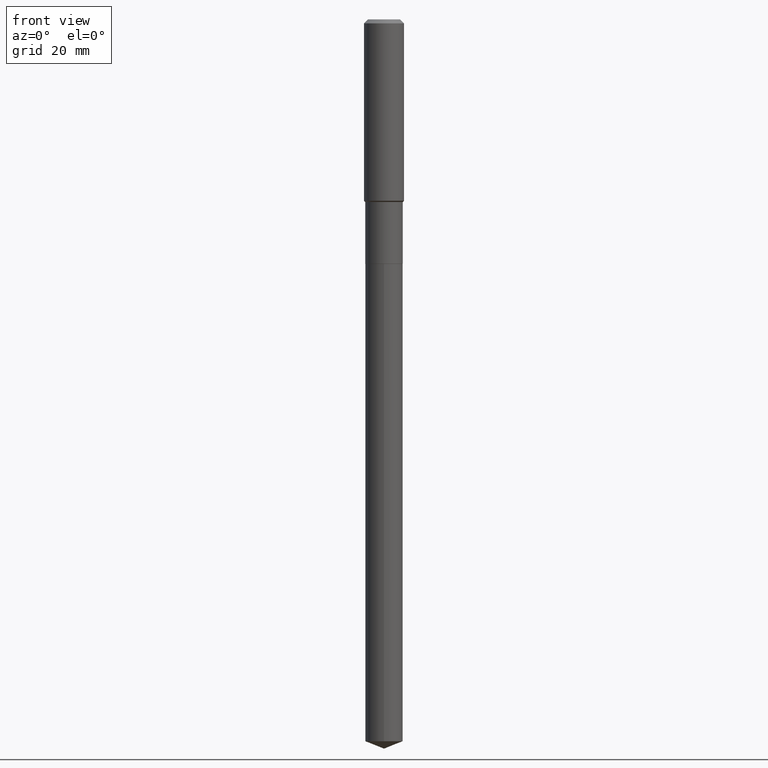
[diagram: clean part render]
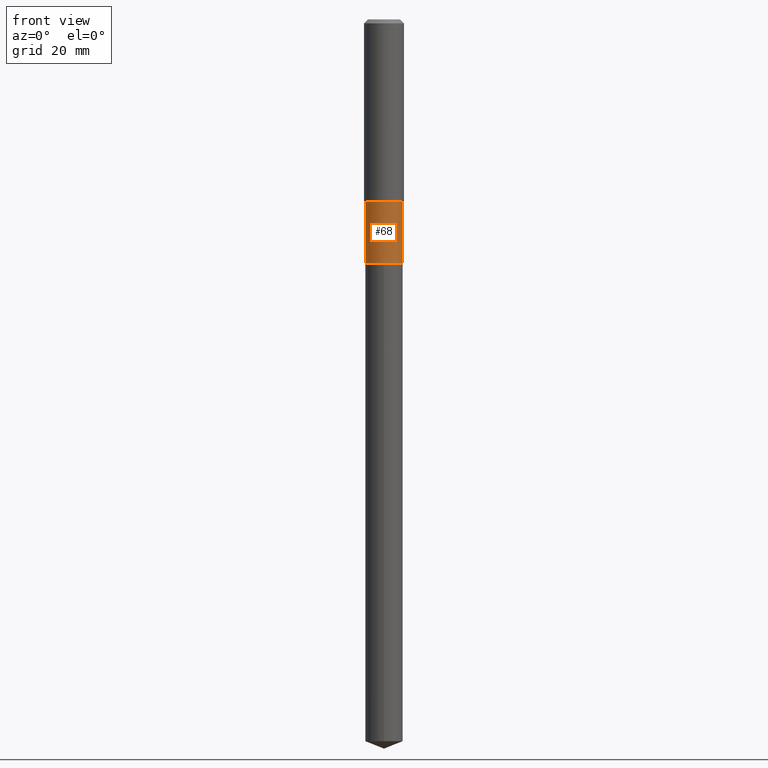
[diagram: same view with one face highlighted and labeled with its STEP entity id]
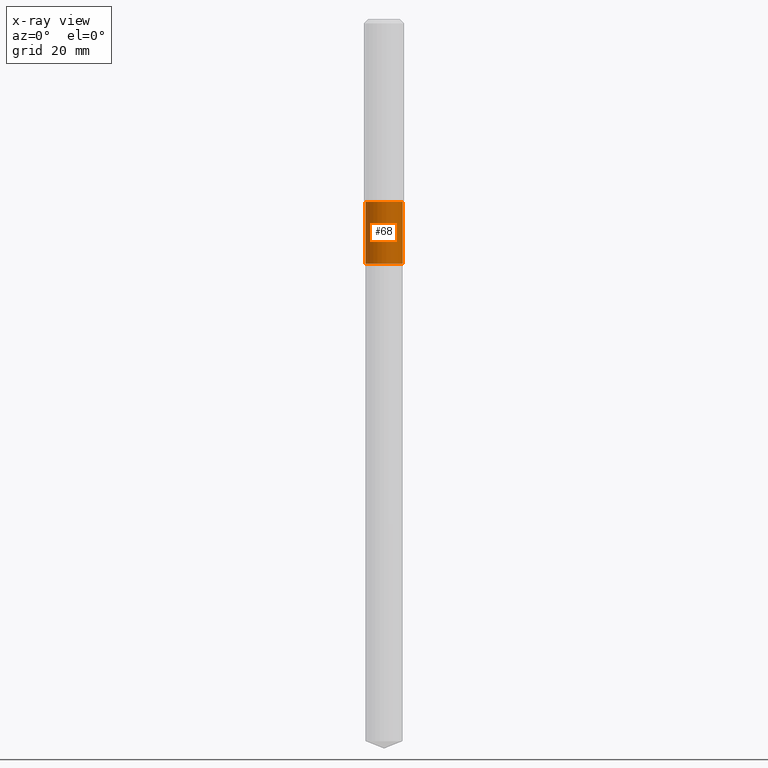
[diagram: x-ray of the same camera — body ghosted, the highlighted face saturated]
A machine part, front view. The second image highlights one B-rep face of the part: STEP entity #68.
The next image is the same camera in x-ray: the body ghosted, the highlighted face saturated — about 0% of this face is hidden behind the body in this view.
In plain terms, the highlighted cylindrical surface (edge-blend (fillet) strip) has radius 4.6736 mm, axis along (-0, 0, 1).
Its self-contained STEP definition (entity closure, byte-faithful):
#10 = EDGE_CURVE ( 'NONE', #379, #243, #325, .T. ) ;
#14 = EDGE_LOOP ( 'NONE', ( #225, #429, #38, #484 ) ) ;
#16 = CARTESIAN_POINT ( 'NONE',  ( -0.1839999999999999969, -6.018252937295160618E-15, -2.401499999999999968 ) ) ;
#22 = AXIS2_PLACEMENT_3D ( 'NONE', #101, #24, #182 ) ;
#24 = DIRECTION ( 'NONE',  ( -2.445468806185136597E-29, 3.491481338843145583E-15, 1.000000000000000000 ) ) ;
#38 = ORIENTED_EDGE ( 'NONE', *, *, #485, .T. ) ;
#48 = LINE ( 'NONE', #319, #107 ) ;
#50 = VERTEX_POINT ( 'NONE', #16 ) ;
#56 = AXIS2_PLACEMENT_3D ( 'NONE', #121, #181, #97 ) ;
#68 = ADVANCED_FACE ( 'NONE', ( #173 ), #252, .T. ) ;
#97 = DIRECTION ( 'NONE',  ( 1.000000000000000000, -6.982962677686265922E-15, 0.000000000000000000 ) ) ;
#101 = CARTESIAN_POINT ( 'NONE',  ( 5.872793338053605564E-29, -8.384792435231812174E-15, -2.401499999999999968 ) ) ;
#107 = VECTOR ( 'NONE', #465, 39.37007874015748143 ) ;
#108 = VECTOR ( 'NONE', #227, 39.37007874015748143 ) ;
#121 = CARTESIAN_POINT ( 'NONE',  ( 4.389127413341083429E-29, -6.266510706955677702E-15, -1.794800000000000173 ) ) ;
#173 = FACE_OUTER_BOUND ( 'NONE', #14, .T. ) ;
#181 = DIRECTION ( 'NONE',  ( -2.445468806185136597E-29, 3.491481338843145583E-15, 1.000000000000000000 ) ) ;
#182 = DIRECTION ( 'NONE',  ( 1.000000000000000000, -6.982962677686264344E-15, 0.000000000000000000 ) ) ;
#225 = ORIENTED_EDGE ( 'NONE', *, *, #312, .F. ) ;
#227 = DIRECTION ( 'NONE',  ( -2.445468806185136877E-29, 3.491481338843145188E-15, 1.000000000000000000 ) ) ;
#243 = VERTEX_POINT ( 'NONE', #424 ) ;
#252 = CYLINDRICAL_SURFACE ( 'NONE', #304, 0.1839999999999999691 ) ;
#265 = CARTESIAN_POINT ( 'NONE',  ( 0.1839999999999999691, -1.284865132694272775E-15, 8.972165267464520289E-30 ) ) ;
#304 = AXIS2_PLACEMENT_3D ( 'NONE', #394, #358, #324 ) ;
#312 = EDGE_CURVE ( 'NONE', #50, #379, #48, .T. ) ;
#319 = CARTESIAN_POINT ( 'NONE',  ( -0.1839999999999999691, 1.307398633798584123E-15, -9.050840566069026560E-30 ) ) ;
#324 = DIRECTION ( 'NONE',  ( 1.000000000000000000, -6.982962677686265922E-15, 4.876176775795935793E-29 ) ) ;
#325 = CIRCLE ( 'NONE', #56, 0.1839999999999999414 ) ;
#337 = LINE ( 'NONE', #265, #108 ) ;
#358 = DIRECTION ( 'NONE',  ( -2.445468806185136597E-29, 3.491481338843145583E-15, 1.000000000000000000 ) ) ;
#376 = EDGE_CURVE ( 'NONE', #50, #488, #377, .T. ) ;
#377 = CIRCLE ( 'NONE', #22, 0.1839999999999999969 ) ;
#379 = VERTEX_POINT ( 'NONE', #477 ) ;
#382 = CARTESIAN_POINT ( 'NONE',  ( 0.1839999999999999969, -9.669657567926086132E-15, -2.401499999999999968 ) ) ;
#394 = CARTESIAN_POINT ( 'NONE',  ( 0.000000000000000000, 0.000000000000000000, 0.000000000000000000 ) ) ;
#424 = CARTESIAN_POINT ( 'NONE',  ( 0.1839999999999999414, -7.551375839649950871E-15, -1.794800000000000173 ) ) ;
#429 = ORIENTED_EDGE ( 'NONE', *, *, #376, .T. ) ;
#465 = DIRECTION ( 'NONE',  ( -2.445468806185136877E-29, 3.491481338843145188E-15, 1.000000000000000000 ) ) ;
#477 = CARTESIAN_POINT ( 'NONE',  ( -0.1839999999999999414, -6.018252937295160618E-15, -1.794800000000000173 ) ) ;
#484 = ORIENTED_EDGE ( 'NONE', *, *, #10, .F. ) ;
#485 = EDGE_CURVE ( 'NONE', #488, #243, #337, .T. ) ;
#488 = VERTEX_POINT ( 'NONE', #382 ) ;